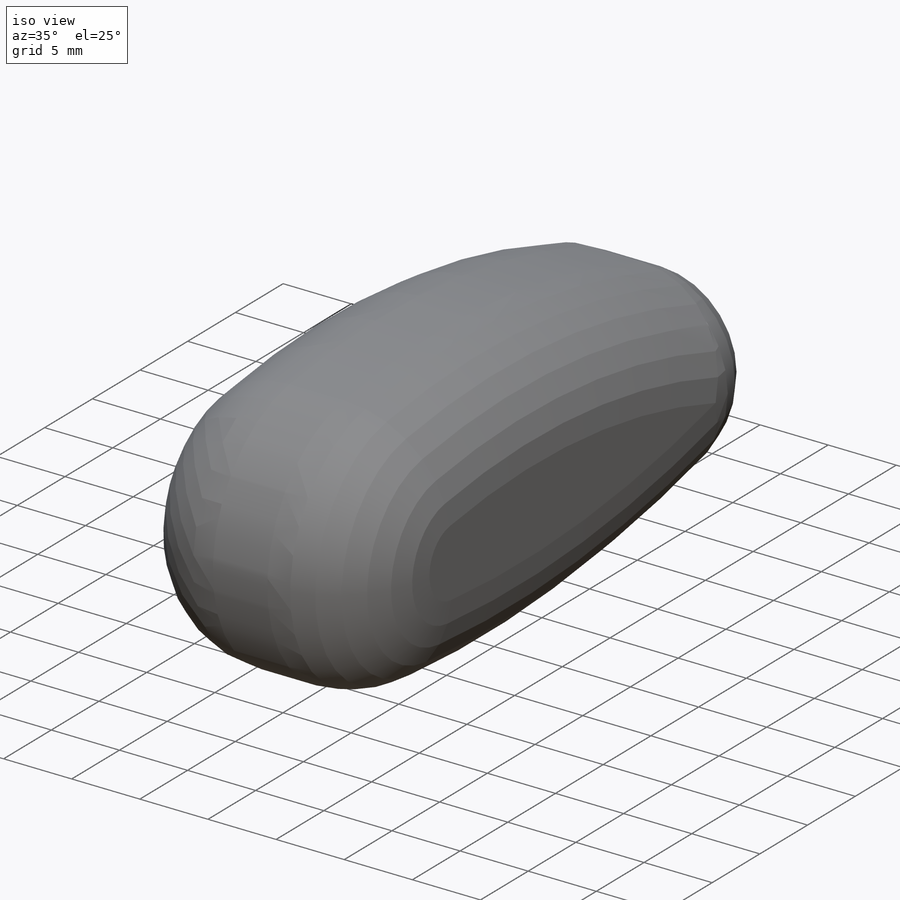
[diagram: iso view]
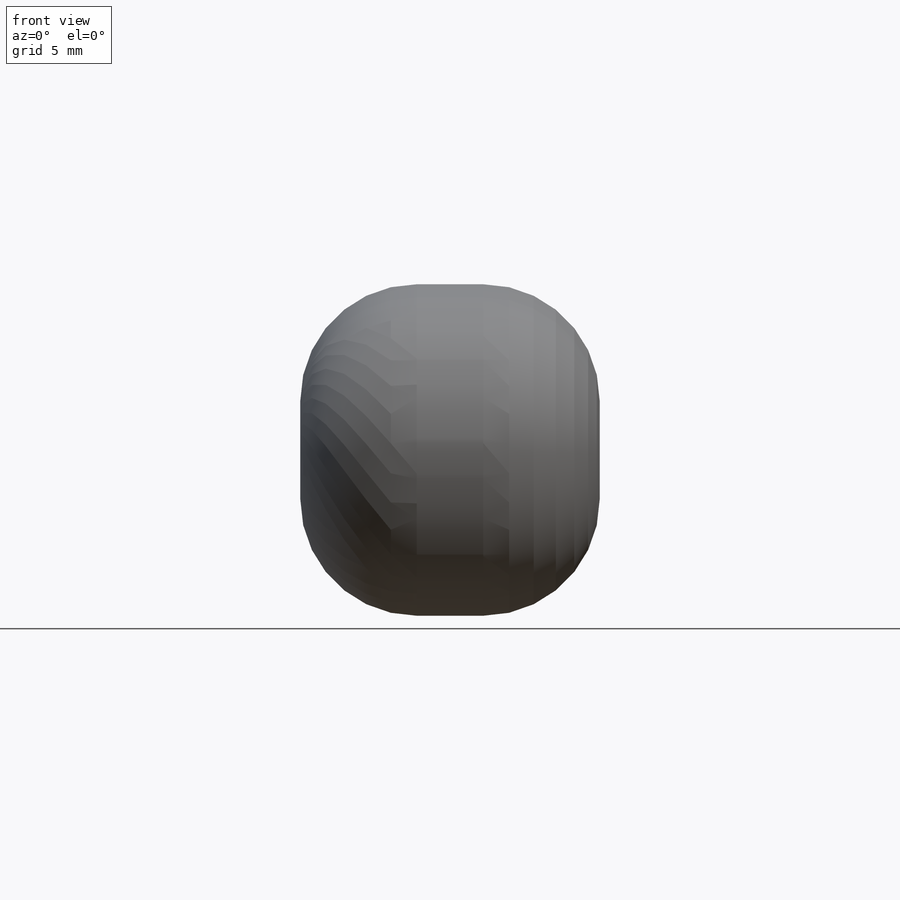
[diagram: front view]
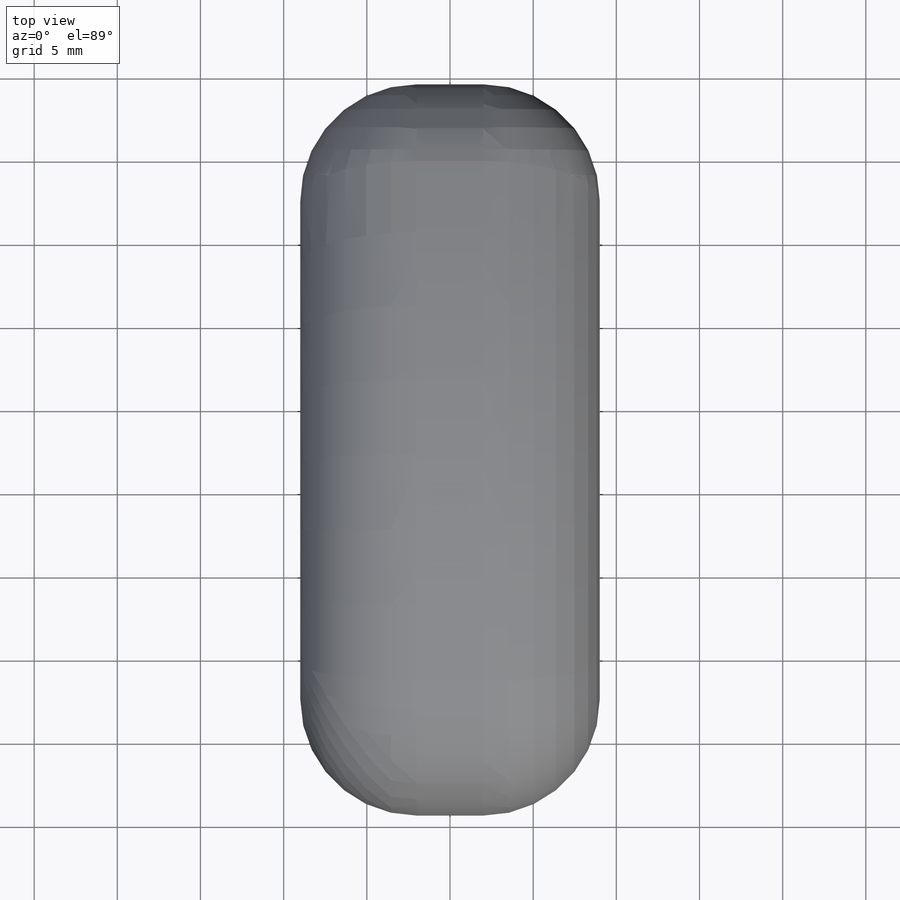
[diagram: top view]
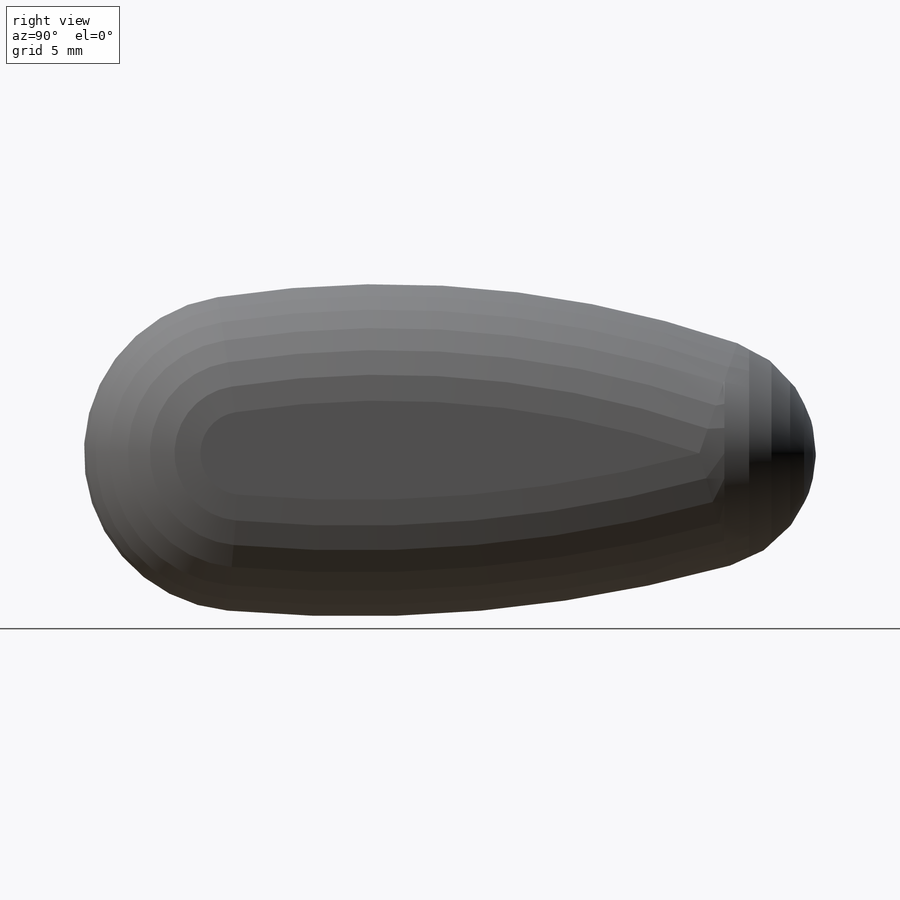
[diagram: right view]
SOLIDWORKS PART (.sldprt)
format: sldprt  version: not decoded by parser v0  size: 182,272 bytes
history: native  units: mm
features: plane x3, sketch x2, fillet x2, material x1, extrude x1, cut_extrude x1 (+10 scaffold rows collapsed)
feature tree (20):
  scaffold x10  (default folders/planes/origin — collapsed)
  material  "Material <not specified>"
  plane  "Vorne"
  plane  "Oben"
  plane  "Rechts"
  sketch  "Skizze2"  dims[c1.D1=19.0mm c1.D2=14.0mm c1.D3=15.0mm c1.D4=65.0mm c1.D5=85.0mm c2.D3=44.0mm]
  extrude  "Basis-Gundkörper"  Depth=18mm
  fillet  "Verrundung rechte Seite"  Radius=7mm
  fillet  "Verrundung linke Seite"  Radius=7mm
  sketch  "Skizze5"  dims[c1.D1=3.0mm c1.D2=3.0mm c1.D3=7.5mm c1.D4=9.5mm c1.D5=9.5mm c1.D6=7.5mm c2.D3=7.0mm c2.D4=7.0mm c2.D5=9.5mm c2.D6=9.5mm c2.D7=5.0mm c2.D8=5.0mm c2.D9=1.0mm c2.D10=1.5mm c2.D12=1.0mm c3.D3=5.5mm c3.D4=6.5mm c3.D5=6.5mm c3.D6=5.5mm c4.D3=5.0mm c4.D4=5.0mm c4.D5=6.0mm c4.D6=6.0mm c4.D11=~7.041114mm c5.D11=20.0deg]
  cut_extrude  "Gelenke"  Depth=10mm
decode coverage: 6 of 6 modeling features carry decoded parameters
note: ~ marks probable driven/reference dimensions
note: suppression state not decoded; provenance and decode notes live in map.json
